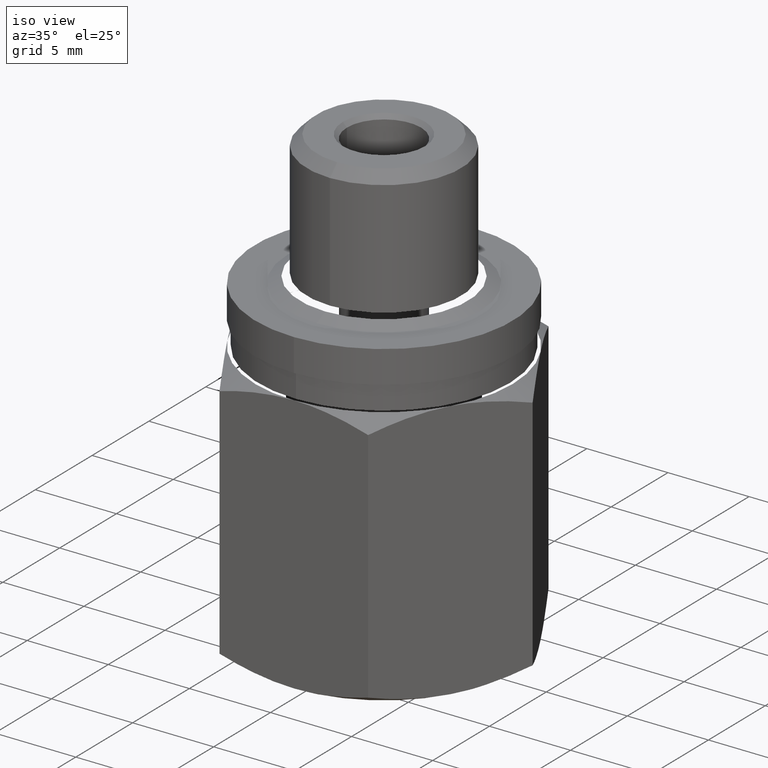
[diagram: clean part render]
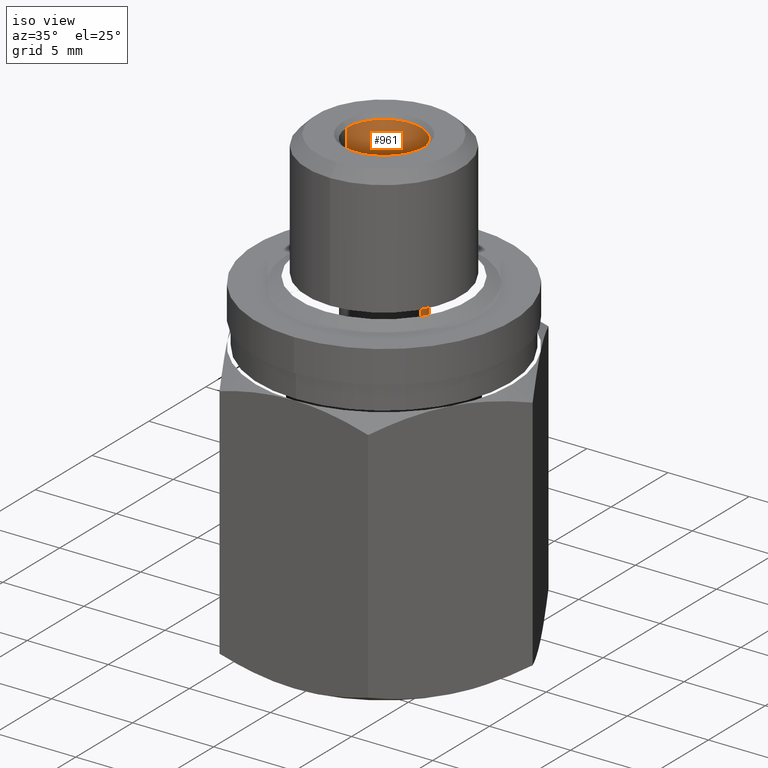
[diagram: same view with one face highlighted and labeled with its STEP entity id]
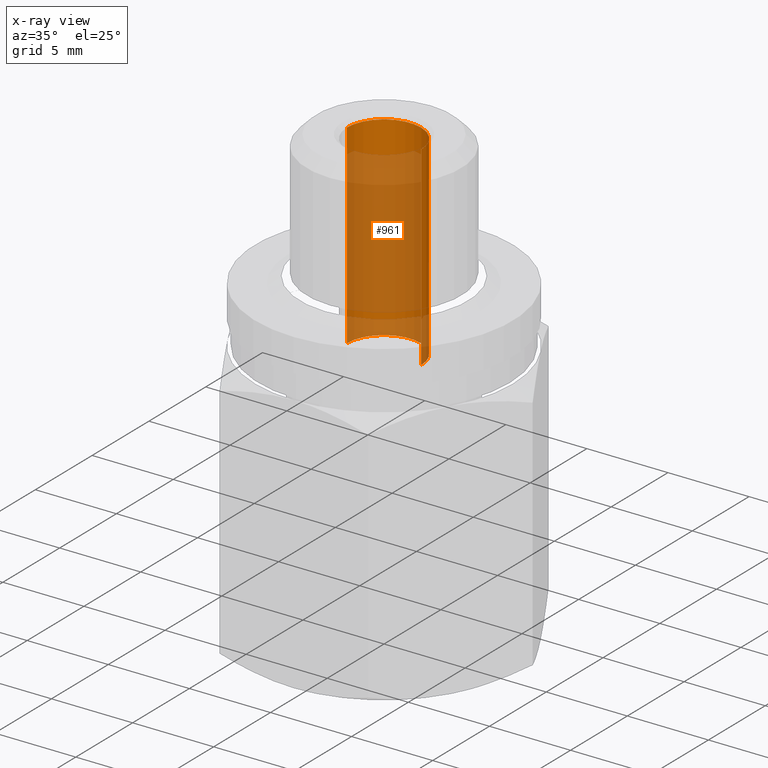
[diagram: x-ray of the same camera — body ghosted, the highlighted face saturated]
A machine part, iso view. The second image highlights one B-rep face of the part: STEP entity #961.
The next image is the same camera in x-ray: the body ghosted, the highlighted face saturated — about 76% of this face is hidden behind the body in this view.
In plain terms, the highlighted cylindrical surface (partial cylindrical patch) has radius 2.286 mm, axis along (0, 0, -1).
Its self-contained STEP definition (entity closure, byte-faithful):
#419=DIRECTION('',(0.E0,0.E0,-1.E0));
#420=VECTOR('',#419,4.733087743831E-1);
#421=CARTESIAN_POINT('',(-9.E-2,0.E0,1.097E0));
#422=LINE('',#421,#420);
#423=DIRECTION('',(0.E0,0.E0,-1.E0));
#424=VECTOR('',#423,4.733087743831E-1);
#425=CARTESIAN_POINT('',(9.E-2,0.E0,1.097E0));
#426=LINE('',#425,#424);
#446=CARTESIAN_POINT('',(0.E0,0.E0,1.097E0));
#447=DIRECTION('',(0.E0,0.E0,-1.E0));
#448=DIRECTION('',(-1.E0,0.E0,0.E0));
#449=AXIS2_PLACEMENT_3D('',#446,#447,#448);
#505=CARTESIAN_POINT('',(0.E0,0.E0,6.236912256169E-1));
#506=DIRECTION('',(0.E0,0.E0,-1.E0));
#507=DIRECTION('',(-1.E0,0.E0,0.E0));
#508=AXIS2_PLACEMENT_3D('',#505,#506,#507);
#617=CARTESIAN_POINT('',(9.E-2,0.E0,1.097E0));
#618=CARTESIAN_POINT('',(-9.E-2,0.E0,1.097E0));
#619=VERTEX_POINT('',#617);
#620=VERTEX_POINT('',#618);
#637=CARTESIAN_POINT('',(-9.E-2,0.E0,6.236912256169E-1));
#638=CARTESIAN_POINT('',(9.E-2,0.E0,6.236912256169E-1));
#639=VERTEX_POINT('',#637);
#640=VERTEX_POINT('',#638);
#946=CARTESIAN_POINT('',(0.E0,0.E0,1.107E0));
#947=DIRECTION('',(0.E0,0.E0,-1.E0));
#948=DIRECTION('',(-1.E0,0.E0,0.E0));
#949=AXIS2_PLACEMENT_3D('',#946,#947,#948);
#950=CYLINDRICAL_SURFACE('',#949,9.E-2);
#952=ORIENTED_EDGE('',*,*,#951,.F.);
#954=ORIENTED_EDGE('',*,*,#953,.F.);
#956=ORIENTED_EDGE('',*,*,#955,.T.);
#958=ORIENTED_EDGE('',*,*,#957,.T.);
#959=EDGE_LOOP('',(#952,#954,#956,#958));
#960=FACE_OUTER_BOUND('',#959,.F.);
#450=CIRCLE('',#449,9.E-2);
#509=CIRCLE('',#508,9.E-2);
#951=EDGE_CURVE('',#639,#640,#509,.T.);
#953=EDGE_CURVE('',#620,#639,#422,.T.);
#955=EDGE_CURVE('',#620,#619,#450,.T.);
#957=EDGE_CURVE('',#619,#640,#426,.T.);
#961=ADVANCED_FACE('',(#960),#950,.F.);